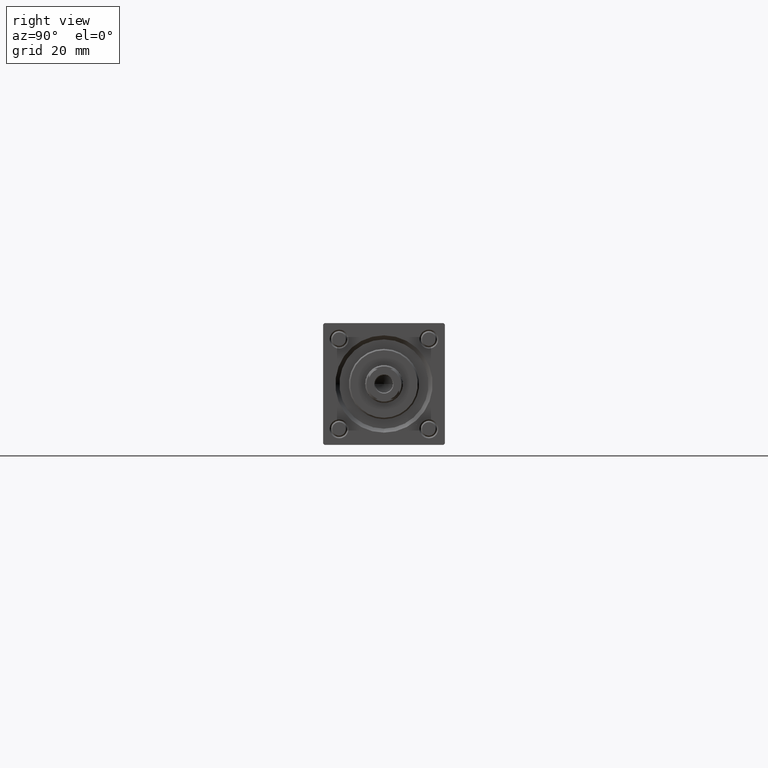
[diagram: clean part render]
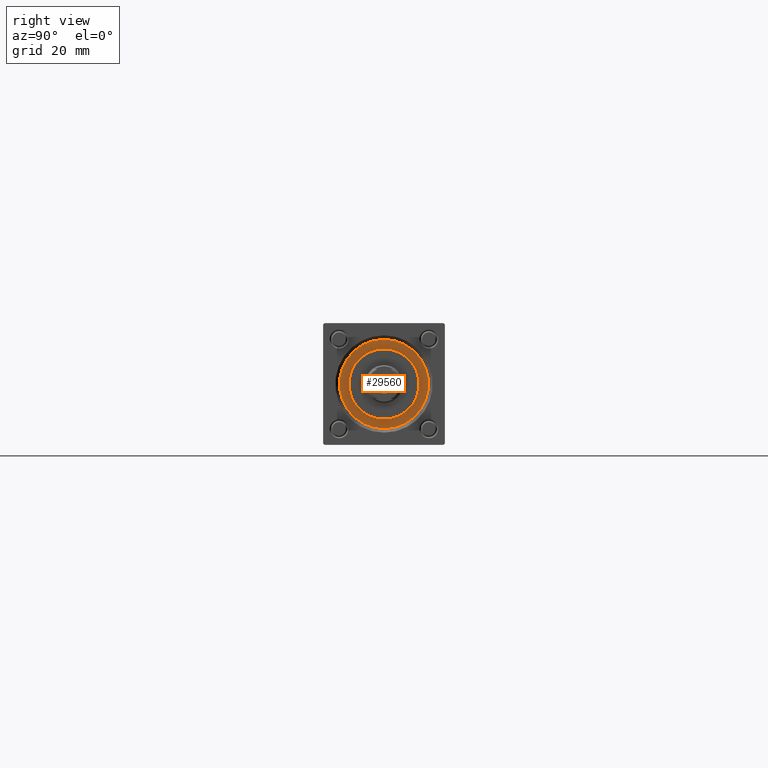
[diagram: same view with one face highlighted and labeled with its STEP entity id]
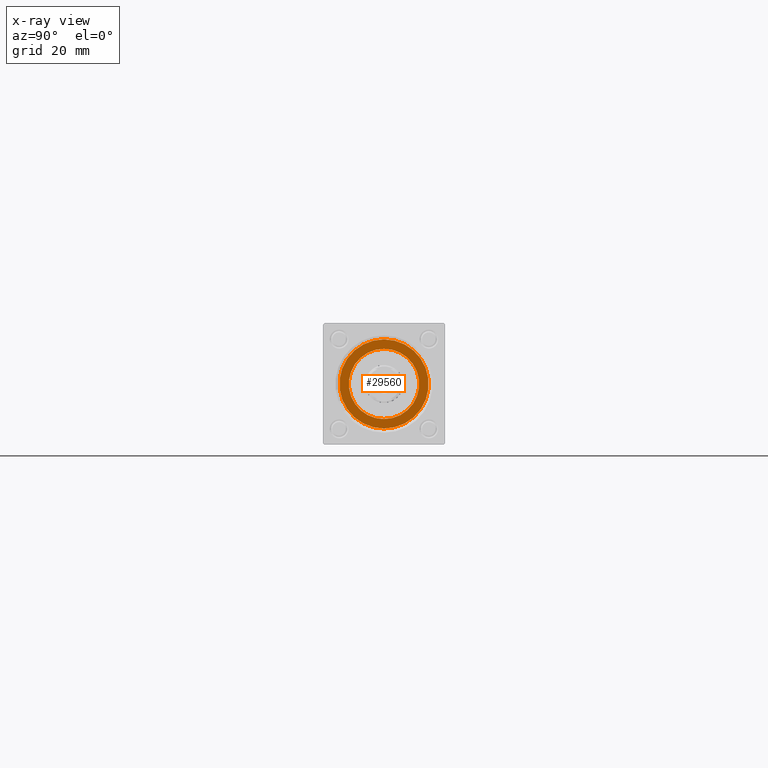
[diagram: x-ray of the same camera — body ghosted, the highlighted face saturated]
A machine part, right view. The second image highlights one B-rep face of the part: STEP entity #29560.
The next image is the same camera in x-ray: the body ghosted, the highlighted face saturated — about 0% of this face is hidden behind the body in this view.
In plain terms, the highlighted planar face has unit normal (1, 0, 0).
Its self-contained STEP definition (entity closure, byte-faithful):
#1484 = VERTEX_POINT ( 'NONE', #36855 ) ;
#3025 = CARTESIAN_POINT ( 'NONE',  ( 0.000000000000000000, 0.000000000000000000, 28.69999999999999929 ) ) ;
#3251 = EDGE_CURVE ( 'NONE', #14123, #1484, #28515, .T. ) ;
#3762 = CIRCLE ( 'NONE', #15734, 16.50000000000000000 ) ;
#6735 = AXIS2_PLACEMENT_3D ( 'NONE', #30941, #48493, #54719 ) ;
#6968 = ORIENTED_EDGE ( 'NONE', *, *, #54985, .T. ) ;
#8101 = DIRECTION ( 'NONE',  ( 0.000000000000000000, 0.000000000000000000, 1.000000000000000000 ) ) ;
#11943 = DIRECTION ( 'NONE',  ( 1.000000000000000000, 0.000000000000000000, -0.000000000000000000 ) ) ;
#14123 = VERTEX_POINT ( 'NONE', #27777 ) ;
#15571 = DIRECTION ( 'NONE',  ( 0.000000000000000000, 0.000000000000000000, 1.000000000000000000 ) ) ;
#15734 = AXIS2_PLACEMENT_3D ( 'NONE', #16025, #16296, #41610 ) ;
#16025 = CARTESIAN_POINT ( 'NONE',  ( 0.000000000000000000, 0.000000000000000000, 28.69999999999999929 ) ) ;
#16296 = DIRECTION ( 'NONE',  ( 0.000000000000000000, 0.000000000000000000, 1.000000000000000000 ) ) ;
#17430 = EDGE_CURVE ( 'NONE', #19593, #23333, #31479, .T. ) ;
#19593 = VERTEX_POINT ( 'NONE', #43449 ) ;
#19978 = CIRCLE ( 'NONE', #40182, 13.00000000000000178 ) ;
#20299 = FACE_OUTER_BOUND ( 'NONE', #46643, .T. ) ;
#23333 = VERTEX_POINT ( 'NONE', #55468 ) ;
#27777 = CARTESIAN_POINT ( 'NONE',  ( 13.00000000000000178, 1.592040838891559293E-15, 28.69999999999999929 ) ) ;
#28515 = CIRCLE ( 'NONE', #45077, 13.00000000000000178 ) ;
#28890 = FACE_BOUND ( 'NONE', #51963, .T. ) ;
#29560 = ADVANCED_FACE ( 'NONE', ( #28890, #20299 ), #37805, .T. ) ;
#30674 = EDGE_CURVE ( 'NONE', #1484, #14123, #19978, .T. ) ;
#30941 = CARTESIAN_POINT ( 'NONE',  ( 0.000000000000000000, 0.000000000000000000, 28.69999999999999929 ) ) ;
#31479 = CIRCLE ( 'NONE', #6735, 16.50000000000000000 ) ;
#32533 = ORIENTED_EDGE ( 'NONE', *, *, #17430, .T. ) ;
#34807 = DIRECTION ( 'NONE',  ( 1.000000000000000000, 0.000000000000000000, 0.000000000000000000 ) ) ;
#36436 = AXIS2_PLACEMENT_3D ( 'NONE', #3025, #38078, #11943 ) ;
#36855 = CARTESIAN_POINT ( 'NONE',  ( -13.00000000000000178, 0.000000000000000000, 28.69999999999999929 ) ) ;
#37805 = PLANE ( 'NONE',  #36436 ) ;
#38078 = DIRECTION ( 'NONE',  ( 0.000000000000000000, 0.000000000000000000, 1.000000000000000000 ) ) ;
#38233 = CARTESIAN_POINT ( 'NONE',  ( 0.000000000000000000, 0.000000000000000000, 28.69999999999999929 ) ) ;
#40182 = AXIS2_PLACEMENT_3D ( 'NONE', #38233, #15571, #42559 ) ;
#41610 = DIRECTION ( 'NONE',  ( 1.000000000000000000, 0.000000000000000000, 0.000000000000000000 ) ) ;
#42100 = ORIENTED_EDGE ( 'NONE', *, *, #3251, .F. ) ;
#42559 = DIRECTION ( 'NONE',  ( 1.000000000000000000, 0.000000000000000000, 0.000000000000000000 ) ) ;
#43449 = CARTESIAN_POINT ( 'NONE',  ( 16.50000000000000000, 2.020667218593133100E-15, 28.69999999999999929 ) ) ;
#43737 = CARTESIAN_POINT ( 'NONE',  ( 0.000000000000000000, 0.000000000000000000, 28.69999999999999929 ) ) ;
#45077 = AXIS2_PLACEMENT_3D ( 'NONE', #43737, #8101, #34807 ) ;
#46643 = EDGE_LOOP ( 'NONE', ( #6968, #32533 ) ) ;
#48493 = DIRECTION ( 'NONE',  ( 0.000000000000000000, 0.000000000000000000, 1.000000000000000000 ) ) ;
#49721 = ORIENTED_EDGE ( 'NONE', *, *, #30674, .F. ) ;
#51963 = EDGE_LOOP ( 'NONE', ( #49721, #42100 ) ) ;
#54719 = DIRECTION ( 'NONE',  ( 1.000000000000000000, 0.000000000000000000, 0.000000000000000000 ) ) ;
#54985 = EDGE_CURVE ( 'NONE', #23333, #19593, #3762, .T. ) ;
#55468 = CARTESIAN_POINT ( 'NONE',  ( -16.50000000000000000, 0.000000000000000000, 28.69999999999999929 ) ) ;